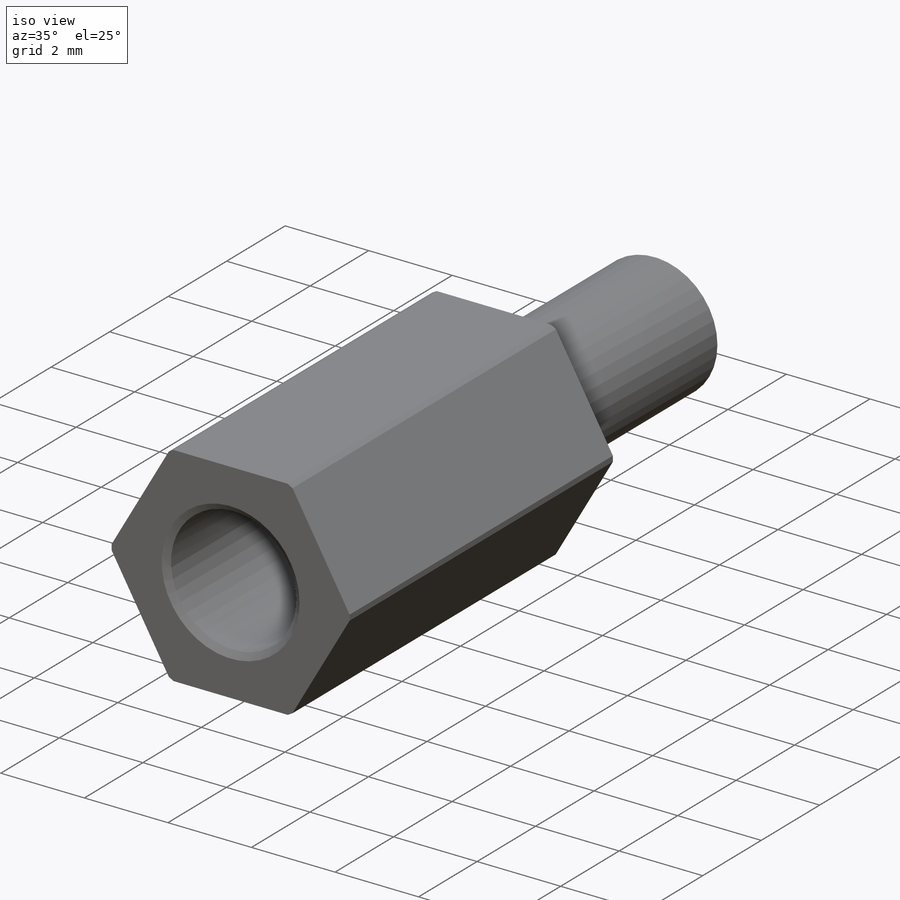
[diagram: iso view]
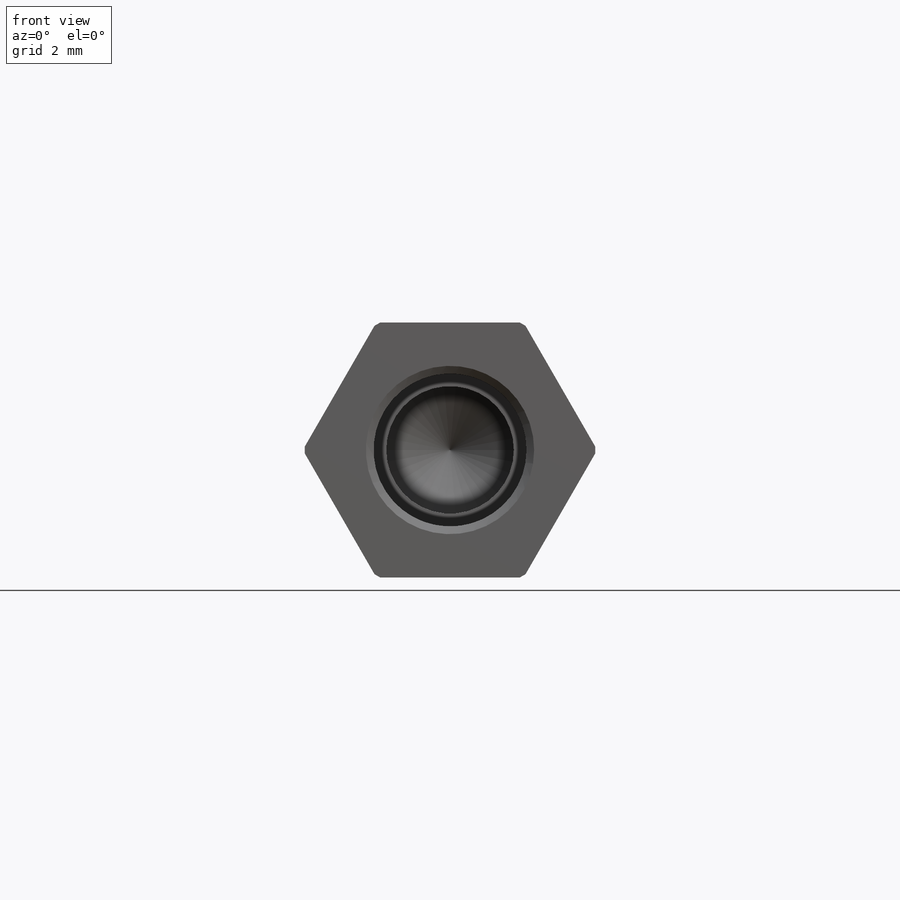
[diagram: front view]
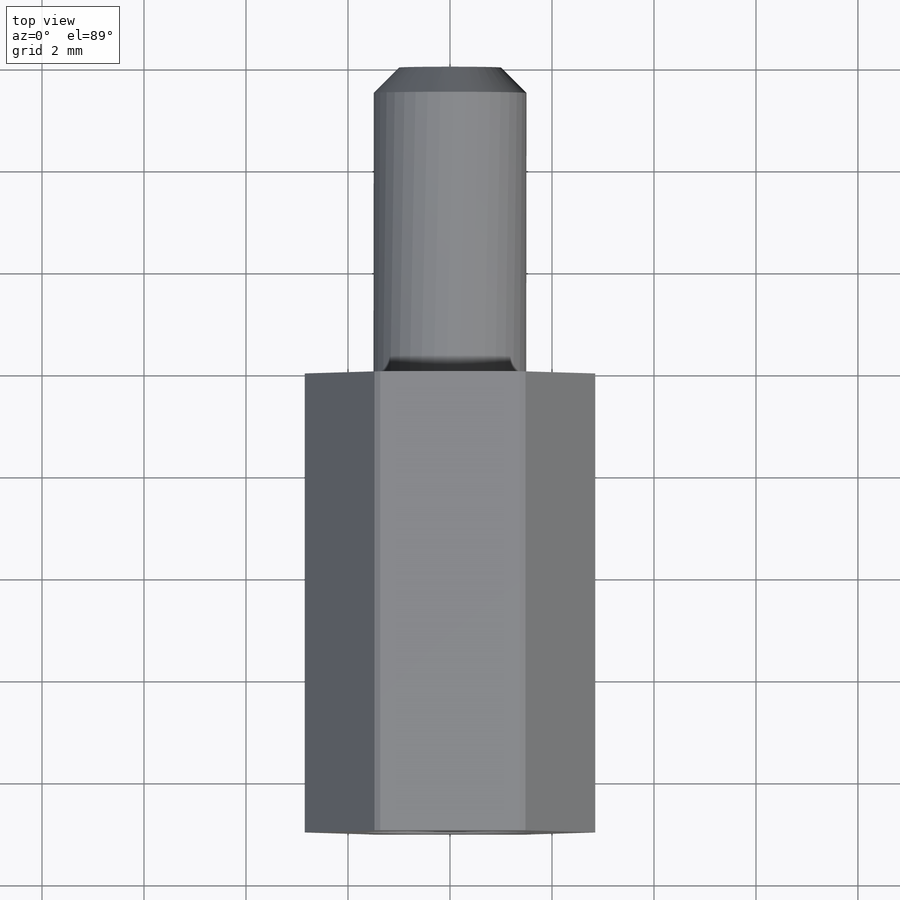
[diagram: top view]
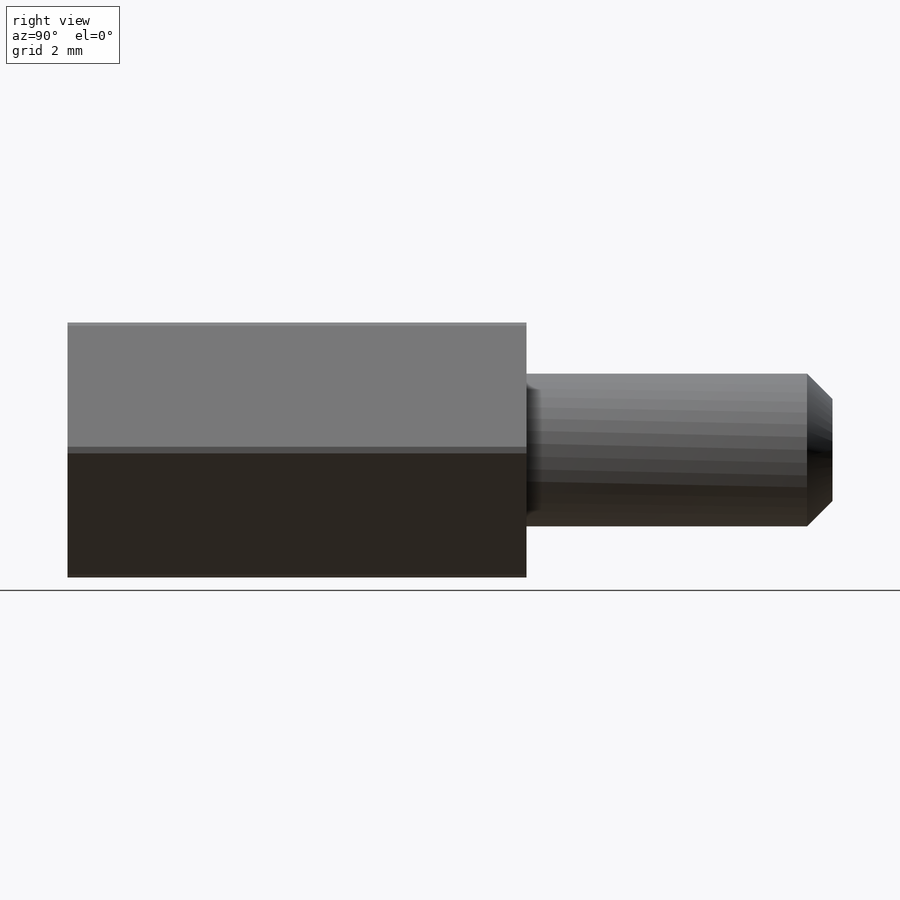
[diagram: right view]
SOLIDWORKS PART (.sldprt)
format: sldprt  version: not decoded by parser v0  size: 261,120 bytes
history: native  units: mm
features: sketch x4, material x1, extrude x1, cut_revolve x1, thread x1, chamfer x1, hole x1 (+14 scaffold rows collapsed)
feature tree (24):
  scaffold x14  (default folders/planes/origin — collapsed)
  material  "Простая углеродистая сталь"
  sketch  "Эскиз1"  dims[D1=5.0mm]
  extrude  "Бобышка-Вытянуть1"  Depth=15mm
  sketch  "Эскиз3"  dims[D1=3.0mm D2=5.7mm D3=9.0mm]
  cut_revolve  "Вырез-Повернуть1"  [1 undecoded]
  thread  "Условное изображение резьбы1"  Diameter=2.439mm  [1 undecoded]
  chamfer  "Фаска1"  Distance=0.5mm Angle=45deg
  hole  "Отверстие обработанное метчиком M31"  [1 undecoded]
  sketch  "Эскиз5"
  sketch  "Эскиз4"  dims[hole-wizard template sketch: 27 standard entries collapsed; hole parameters kept: c8.Глубина сверла=7.0mm c8.Диаметр резьбы=3.0mm c8.Глубина резьбы=5.0mm c8.Диаметр передней зенковки=3.3mm c8.D6=~4.399409mm c8.Угол передней зенковки=110.0deg c8.D7=~14.816244mm c8.Угол заточки сверла=118.0deg]
decode coverage: 6 of 9 modeling features carry decoded parameters
note: ~ marks probable driven/reference dimensions
note: 3 parameter values undecoded
note: suppression state not decoded; provenance and decode notes live in map.json
